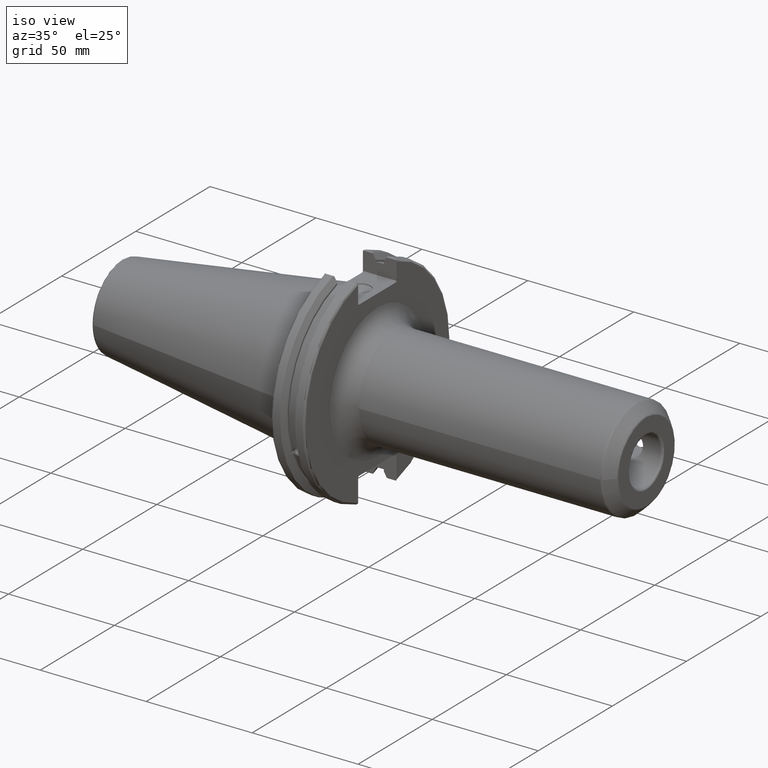
[diagram: clean part render]
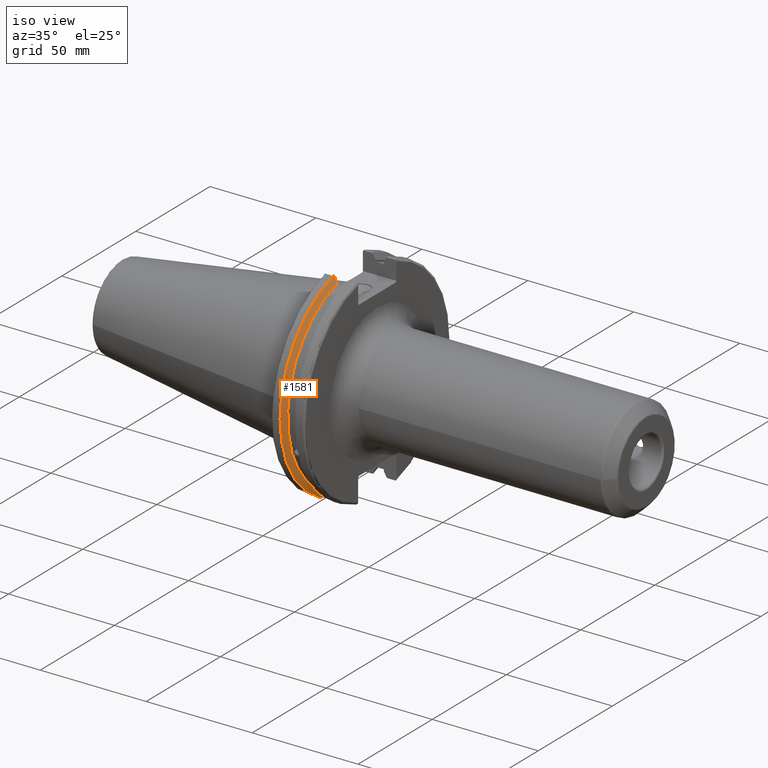
[diagram: same view with one face highlighted and labeled with its STEP entity id]
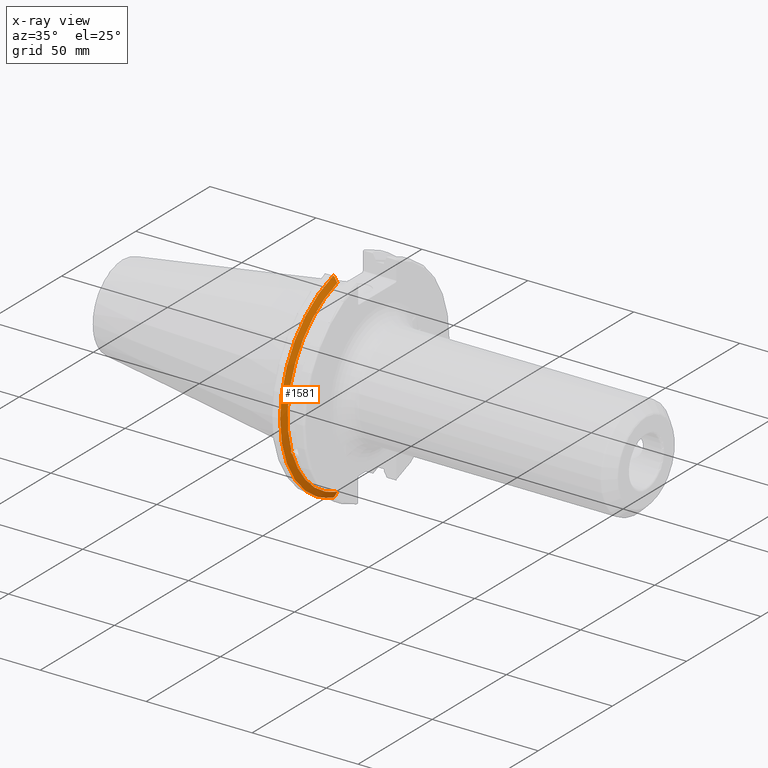
[diagram: x-ray of the same camera — body ghosted, the highlighted face saturated]
A machine part, iso view. The second image highlights one B-rep face of the part: STEP entity #1581.
The next image is the same camera in x-ray: the body ghosted, the highlighted face saturated — about 0% of this face is hidden behind the body in this view.
In plain terms, the highlighted conical surface has half-angle 60 deg.
Its self-contained STEP definition (entity closure, byte-faithful):
#24=(
BOUNDED_CURVE()
B_SPLINE_CURVE(2,(#3123,#3124,#3125),.UNSPECIFIED.,.F.,.F.)
B_SPLINE_CURVE_WITH_KNOTS((3,3),(0.,0.275823910673799),.UNSPECIFIED.)
CURVE()
GEOMETRIC_REPRESENTATION_ITEM()
RATIONAL_B_SPLINE_CURVE((1.,1.00038235574547,1.00012873636808))
REPRESENTATION_ITEM('')
);
#25=(
BOUNDED_CURVE()
B_SPLINE_CURVE(2,(#3135,#3136,#3137),.UNSPECIFIED.,.F.,.F.)
B_SPLINE_CURVE_WITH_KNOTS((3,3),(0.0558332664508419,0.331657177124507),
 .UNSPECIFIED.)
CURVE()
GEOMETRIC_REPRESENTATION_ITEM()
RATIONAL_B_SPLINE_CURVE((1.00012873636699,1.00038235574223,1.))
REPRESENTATION_ITEM('')
);
#26=(
BOUNDED_CURVE()
B_SPLINE_CURVE(2,(#3170,#3171,#3172),.UNSPECIFIED.,.F.,.F.)
B_SPLINE_CURVE_WITH_KNOTS((3,3),(0.,0.064824047289869),.UNSPECIFIED.)
CURVE()
GEOMETRIC_REPRESENTATION_ITEM()
RATIONAL_B_SPLINE_CURVE((1.,1.00011477674823,1.00019140645925))
REPRESENTATION_ITEM('')
);
#27=(
BOUNDED_CURVE()
B_SPLINE_CURVE(2,(#3178,#3179,#3180),.UNSPECIFIED.,.F.,.F.)
B_SPLINE_CURVE_WITH_KNOTS((3,3),(0.325260944932363,0.390084992222202),
 .UNSPECIFIED.)
CURVE()
GEOMETRIC_REPRESENTATION_ITEM()
RATIONAL_B_SPLINE_CURVE((1.00019140645909,1.00011477674813,1.))
REPRESENTATION_ITEM('')
);
#206=FACE_OUTER_BOUND('',#315,.T.);
#315=EDGE_LOOP('',(#1442,#1443,#1444,#1445,#1446,#1447,#1448,#1449));
#365=CIRCLE('',#1682,46.4219772964944);
#387=CIRCLE('',#1729,49.2125);
#399=CIRCLE('',#1764,46.4219772964944);
#608=B_SPLINE_CURVE_WITH_KNOTS('',3,(#2665,#2666,#2667,#2668,#2669,#2670,
#2671,#2672,#2673,#2674,#2675,#2676,#2677,#2678),.UNSPECIFIED.,.F.,.F.,
(4,2,2,2,2,2,4),(0.426712868358719,0.441644498666907,0.480313313223131,
0.518982127779354,0.557650942335578,0.596319756891801,0.611251387199989),
 .UNSPECIFIED.);
#690=VERTEX_POINT('',#2662);
#691=VERTEX_POINT('',#2664);
#708=VERTEX_POINT('',#2755);
#768=VERTEX_POINT('',#3120);
#769=VERTEX_POINT('',#3122);
#772=VERTEX_POINT('',#3134);
#776=VERTEX_POINT('',#3168);
#777=VERTEX_POINT('',#3174);
#864=EDGE_CURVE('',#691,#690,#608,.T.);
#887=EDGE_CURVE('',#691,#708,#365,.T.);
#967=EDGE_CURVE('',#769,#768,#24,.T.);
#973=EDGE_CURVE('',#772,#708,#25,.T.);
#981=EDGE_CURVE('',#776,#768,#26,.T.);
#983=EDGE_CURVE('',#776,#777,#387,.T.);
#984=EDGE_CURVE('',#772,#777,#27,.T.);
#1017=EDGE_CURVE('',#769,#690,#399,.T.);
#1442=ORIENTED_EDGE('',*,*,#864,.T.);
#1443=ORIENTED_EDGE('',*,*,#1017,.F.);
#1444=ORIENTED_EDGE('',*,*,#967,.T.);
#1445=ORIENTED_EDGE('',*,*,#981,.F.);
#1446=ORIENTED_EDGE('',*,*,#983,.T.);
#1447=ORIENTED_EDGE('',*,*,#984,.F.);
#1448=ORIENTED_EDGE('',*,*,#973,.T.);
#1449=ORIENTED_EDGE('',*,*,#887,.F.);
#1503=CONICAL_SURFACE('',#1763,47.8172386482472,1.0471975511966);
#1581=ADVANCED_FACE('',(#206),#1503,.T.);
#1682=AXIS2_PLACEMENT_3D('',#2756,#1947,#1948);
#1729=AXIS2_PLACEMENT_3D('',#3176,#2084,#2085);
#1763=AXIS2_PLACEMENT_3D('',#3273,#2167,#2168);
#1764=AXIS2_PLACEMENT_3D('',#3274,#2169,#2170);
#1947=DIRECTION('center_axis',(1.,0.,0.));
#1948=DIRECTION('ref_axis',(0.,0.,-1.));
#2084=DIRECTION('center_axis',(1.,0.,0.));
#2085=DIRECTION('ref_axis',(0.,0.,-1.));
#2167=DIRECTION('center_axis',(-1.,0.,0.));
#2168=DIRECTION('ref_axis',(0.,-1.,-1.22464679914735E-16));
#2169=DIRECTION('center_axis',(1.,0.,0.));
#2170=DIRECTION('ref_axis',(0.,0.,-1.));
#2662=CARTESIAN_POINT('',(9.2191,-43.9096390749305,-15.0646464421033));
#2664=CARTESIAN_POINT('',(9.2191,-43.3201030900029,-16.684383248648));
#2665=CARTESIAN_POINT('Ctrl Pts',(9.2191,-43.3201030900029,-16.6843832486479));
#2666=CARTESIAN_POINT('Ctrl Pts',(9.20211843903392,-43.3613106941341,-16.6592273018006));
#2667=CARTESIAN_POINT('Ctrl Pts',(9.18608675403322,-43.4012416983557,-16.6326763251437));
#2668=CARTESIAN_POINT('Ctrl Pts',(9.13238673845037,-43.5391037343221,-16.5325130832406));
#2669=CARTESIAN_POINT('Ctrl Pts',(9.09621610663555,-43.6406982153491,-16.4411807953719));
#2670=CARTESIAN_POINT('Ctrl Pts',(9.04690868251975,-43.8110833825827,-16.2291323464527));
#2671=CARTESIAN_POINT('Ctrl Pts',(9.0341,-43.8794096049168,-16.10796730316));
#2672=CARTESIAN_POINT('Ctrl Pts',(9.0341,-43.9675796948952,-15.8657219718732));
#2673=CARTESIAN_POINT('Ctrl Pts',(9.04690868251975,-43.9931221605125,-15.7289849146254));
#2674=CARTESIAN_POINT('Ctrl Pts',(9.09621610663555,-43.9989016655819,-15.4570249042868));
#2675=CARTESIAN_POINT('Ctrl Pts',(9.13238673845037,-43.9797830409458,-15.3217566390708));
#2676=CARTESIAN_POINT('Ctrl Pts',(9.18608675403322,-43.9385582852181,-15.1564111356409));
#2677=CARTESIAN_POINT('Ctrl Pts',(9.20211843903392,-43.9250360001461,-15.1104047527575));
#2678=CARTESIAN_POINT('Ctrl Pts',(9.2191,-43.9096390749305,-15.0646464421033));
#2755=CARTESIAN_POINT('',(9.2191,-12.95,-44.5791147973604));
#2756=CARTESIAN_POINT('Origin',(9.2191,0.,0.));
#3120=CARTESIAN_POINT('',(7.88638960562424,-12.95,46.9780755322918));
#3122=CARTESIAN_POINT('',(9.2191,-12.95,44.5791147973604));
#3123=CARTESIAN_POINT('Ctrl Pts',(9.2191,-12.95,44.5791147973604));
#3124=CARTESIAN_POINT('Ctrl Pts',(8.57020449054213,-12.95,45.7494966802443));
#3125=CARTESIAN_POINT('Ctrl Pts',(7.88638960562424,-12.95,46.9780755322918));
#3134=CARTESIAN_POINT('',(7.88638960562425,-12.95,-46.9780755322917));
#3135=CARTESIAN_POINT('Ctrl Pts',(7.88638960562425,-12.95,-46.9780755322917));
#3136=CARTESIAN_POINT('Ctrl Pts',(8.5702044905427,-12.95,-45.7494966802433));
#3137=CARTESIAN_POINT('Ctrl Pts',(9.2191,-12.95,-44.5791147973604));
#3168=CARTESIAN_POINT('',(7.60799096595127,-13.4317035994433,47.3440544806494));
#3170=CARTESIAN_POINT('Ctrl Pts',(7.60799096595127,-13.4317035994433,47.3440544806494));
#3171=CARTESIAN_POINT('Ctrl Pts',(7.74826896663813,-13.1896660169967,47.1601640966265));
#3172=CARTESIAN_POINT('Ctrl Pts',(7.88638960562424,-12.95,46.9780755322918));
#3174=CARTESIAN_POINT('',(7.60799096595127,-13.4317035994433,-47.3440544806494));
#3176=CARTESIAN_POINT('Origin',(7.60799096595127,0.,0.));
#3178=CARTESIAN_POINT('Ctrl Pts',(7.88638960562425,-12.95,-46.9780755322917));
#3179=CARTESIAN_POINT('Ctrl Pts',(7.74826896663813,-13.1896660169967,-47.1601640966265));
#3180=CARTESIAN_POINT('Ctrl Pts',(7.60799096595127,-13.4317035994433,-47.3440544806494));
#3273=CARTESIAN_POINT('Origin',(8.41354548297563,0.,0.));
#3274=CARTESIAN_POINT('Origin',(9.2191,0.,0.));